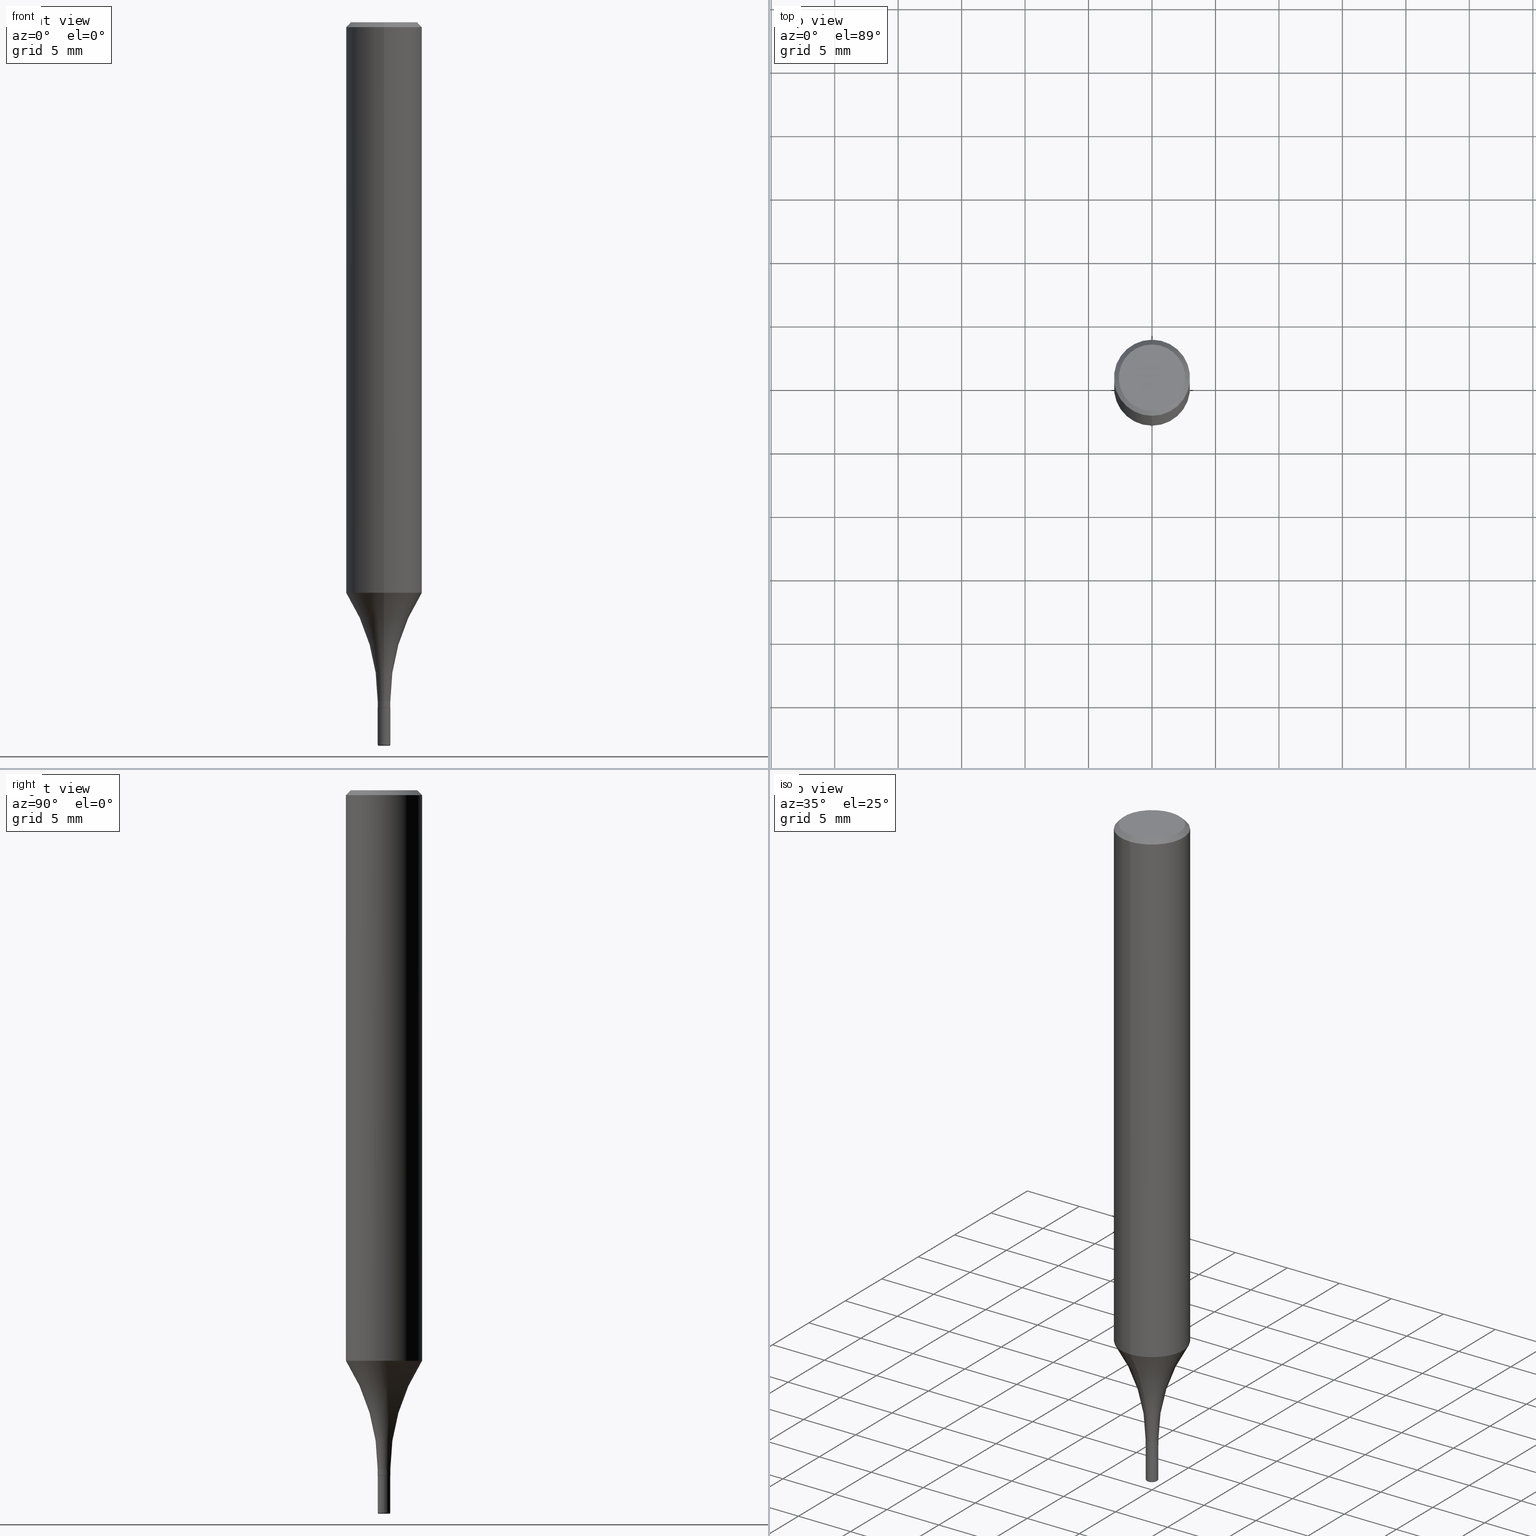
[diagram: canonical four-view strip — front | top / right | iso, engineering-drawing reading convention]
A machine part, canonical four-view strip (front | top / right | iso — engineering-drawing reading convention). The complete STEP part file that produces these views, byte-faithful:
ISO-10303-21;
HEADER;
FILE_DESCRIPTION (( 'STEP AP203' ),
    '1' );
FILE_NAME ('46873.STEP',
    '2024-02-29T19:33:22',
    ( '' ),
    ( '' ),
    'SwSTEP 2.0',
    'SolidWorks 2023',
    '' );
FILE_SCHEMA (( 'CONFIG_CONTROL_DESIGN' ));
ENDSEC;

DATA;
#1 = VERTEX_POINT ( 'NONE', #279 ) ;
#2 = VERTEX_POINT ( 'NONE', #356 ) ;
#3 = DIRECTION ( 'NONE',  ( -6.982962677686265922E-15, -1.000000000000000000, 4.626330217890367758E-15 ) ) ;
#4 = DIRECTION ( 'NONE',  ( -6.982962677686266711E-15, -1.000000000000000000, 3.488691266740256408E-15 ) ) ;
#5 = VECTOR ( 'NONE', #80, 39.37007874015748143 ) ;
#6 = DIRECTION ( 'NONE',  ( -2.447417103121389327E-29, 3.488691266740256803E-15, 1.000000000000000000 ) ) ;
#7 = CARTESIAN_POINT ( 'NONE',  ( 7.723156721521011834E-16, 0.1031000000000000111, -8.678692666830198749E-17 ) ) ;
#8 = CYLINDRICAL_SURFACE ( 'NONE', #275, 0.01969999999999991203 ) ;
#9 = FACE_OUTER_BOUND ( 'NONE', #409, .T. ) ;
#10 = EDGE_CURVE ( 'NONE', #2, #145, #11, .T. ) ;
#11 = CIRCLE ( 'NONE', #259, 0.01969999999999990856 ) ;
#12 = PLANE ( 'NONE',  #185 ) ;
#13 = VECTOR ( 'NONE', #171, 39.37007874015748143 ) ;
#14 = EDGE_CURVE ( 'NONE', #197, #232, #289, .T. ) ;
#15 = CARTESIAN_POINT ( 'NONE',  ( 8.246878922347483612E-16, 0.1180999999999999411, -0.01500000000000009659 ) ) ;
#16 = DIRECTION ( 'NONE',  ( -6.982962677686265922E-15, -1.000000000000000000, 0.000000000000000000 ) ) ;
#17 = ORIENTED_EDGE ( 'NONE', *, *, #131, .T. ) ;
#18 = EDGE_CURVE ( 'NONE', #1, #514, #22, .T. ) ;
#19 = DIRECTION ( 'NONE',  ( 1.000000000000000000, -6.982962677686244622E-15, 0.000000000000000000 ) ) ;
#20 = ORIENTED_EDGE ( 'NONE', *, *, #250, .F. ) ;
#21 = CYLINDRICAL_SURFACE ( 'NONE', #260, 0.1181000000000000105 ) ;
#22 = CIRCLE ( 'NONE', #210, 0.01969999999999999876 ) ;
#23 = VECTOR ( 'NONE', #53, 39.37007874015748143 ) ;
#24 = LOCAL_TIME ( 14, 33, 22.00000000000000000, #161 ) ;
#25 = DIRECTION ( 'NONE',  ( -6.982962677686265922E-15, -1.000000000000000000, 0.000000000000000000 ) ) ;
#26 = CARTESIAN_POINT ( 'NONE',  ( -0.01969999999999991203, 1.399769189447391115E-16, -9.690302127802120462E-31 ) ) ;
#27 = EDGE_LOOP ( 'NONE', ( #113, #66, #76, #31 ) ) ;
#28 = TOROIDAL_SURFACE ( 'NONE', #438, 0.6446999999999999398, 0.6250000000000000000 ) ;
#29 = ORIENTED_EDGE ( 'NONE', *, *, #315, .F. ) ;
#30 = DIRECTION ( 'NONE',  ( -1.000000000000000000, 6.982962677686265922E-15, -4.876176775795935793E-29 ) ) ;
#31 = ORIENTED_EDGE ( 'NONE', *, *, #216, .F. ) ;
#32 = APPROVAL_ROLE ( '' ) ;
#33 = ORIENTED_EDGE ( 'NONE', *, *, #401, .F. ) ;
#34 = ORIENTED_EDGE ( 'NONE', *, *, #131, .F. ) ;
#35 = SHAPE_DEFINITION_REPRESENTATION ( #456, #294 ) ;
#36 = DIRECTION ( 'NONE',  ( 1.000000000000000000, -6.982962677686241467E-15, 4.883557194083104493E-29 ) ) ;
#37 = VERTEX_POINT ( 'NONE', #38 ) ;
#38 = CARTESIAN_POINT ( 'NONE',  ( 0.01969999999999982529, -7.959180860026833037E-15, -2.240200000000000191 ) ) ;
#39 = AXIS2_PLACEMENT_3D ( 'NONE', #280, #251, #371 ) ;
#40 = CARTESIAN_POINT ( 'NONE',  ( 5.201985052684511926E-29, -7.415213287456414496E-15, -2.125499999999999723 ) ) ;
#41 = EDGE_CURVE ( 'NONE', #37, #348, #306, .T. ) ;
#42 = ORIENTED_EDGE ( 'NONE', *, *, #166, .F. ) ;
#43 = EDGE_LOOP ( 'NONE', ( #437, #343, #117, #228 ) ) ;
#44 = EDGE_LOOP ( 'NONE', ( #325, #394, #302, #42 ) ) ;
#45 = CARTESIAN_POINT ( 'NONE',  ( 4.895639449387564790E-16, 0.01969999999999257762, -2.106099999999999639 ) ) ;
#46 = ORIENTED_EDGE ( 'NONE', *, *, #41, .F. ) ;
#47 = EDGE_CURVE ( 'NONE', #305, #484, #296, .T. ) ;
#48 = PERSON_AND_ORGANIZATION ( #180, #483 ) ;
#49 = CC_DESIGN_PERSON_AND_ORGANIZATION_ASSIGNMENT ( #146, #65, ( #292 ) ) ;
#50 = DIRECTION ( 'NONE',  ( -6.982962677686265922E-15, -1.000000000000000000, 4.626330217890367758E-15 ) ) ;
#51 = PLANE ( 'NONE',  #458 ) ;
#52 = DIRECTION ( 'NONE',  ( -2.438088387897960049E-29, 3.491481338843145188E-15, 1.000000000000000000 ) ) ;
#53 = DIRECTION ( 'NONE',  ( -4.937700262163715794E-15, -0.7071067811864258923, 0.7071067811866691422 ) ) ;
#54 = DIRECTION ( 'NONE',  ( -1.000000000000000000, 7.105427357600940328E-15, 0.000000000000000000 ) ) ;
#55 = CARTESIAN_POINT ( 'NONE',  ( -8.246878922347480654E-16, -0.1181000000000000105, 4.120144386020243897E-16 ) ) ;
#56 = AXIS2_PLACEMENT_3D ( 'NONE', #159, #366, #482 ) ;
#57 = ADVANCED_FACE ( 'NONE', ( #9 ), #92, .F. ) ;
#58 = EDGE_CURVE ( 'NONE', #484, #348, #258, .T. ) ;
#59 = DIRECTION ( 'NONE',  ( -2.447417103121389327E-29, 3.488691266740256803E-15, 1.000000000000000000 ) ) ;
#60 = FACE_OUTER_BOUND ( 'NONE', #387, .T. ) ;
#61 = DIMENSIONAL_EXPONENTS ( 1.000000000000000000, 0.000000000000000000, 0.000000000000000000, 0.000000000000000000, 0.000000000000000000, 0.000000000000000000, 0.000000000000000000 ) ;
#62 = APPLICATION_CONTEXT ( 'configuration controlled 3d designs of mechanical parts and assemblies' ) ;
#63 = VECTOR ( 'NONE', #77, 39.37007874015748143 ) ;
#64 = CC_DESIGN_DATE_AND_TIME_ASSIGNMENT ( #433, #201, ( #408 ) ) ;
#65 = PERSON_AND_ORGANIZATION_ROLE ( 'design_owner' ) ;
#66 = ORIENTED_EDGE ( 'NONE', *, *, #499, .T. ) ;
#67 = LENGTH_MEASURE_WITH_UNIT ( LENGTH_MEASURE( 0.02539999999999999897 ), #295 );
#68 = AXIS2_PLACEMENT_3D ( 'NONE', #489, #320, #480 ) ;
#69 = AXIS2_PLACEMENT_3D ( 'NONE', #517, #90, #50 ) ;
#70 = EDGE_CURVE ( 'NONE', #193, #511, #212, .T. ) ;
#71 = ORIENTED_EDGE ( 'NONE', *, *, #499, .F. ) ;
#72 =( NAMED_UNIT ( * ) SI_UNIT ( $, .STERADIAN. ) SOLID_ANGLE_UNIT ( ) );
#73 = EDGE_LOOP ( 'NONE', ( #310, #219 ) ) ;
#74 = ORIENTED_EDGE ( 'NONE', *, *, #450, .F. ) ;
#75 = PERSON_AND_ORGANIZATION ( #180, #483 ) ;
#76 = ORIENTED_EDGE ( 'NONE', *, *, #501, .F. ) ;
#77 = DIRECTION ( 'NONE',  ( -2.445468806185136877E-29, 3.491481338843145188E-15, 1.000000000000000000 ) ) ;
#78 = AXIS2_PLACEMENT_3D ( 'NONE', #214, #414, #54 ) ;
#79 = AXIS2_PLACEMENT_3D ( 'NONE', #40, #84, #115 ) ;
#80 = DIRECTION ( 'NONE',  ( -2.447417103121389327E-29, 3.488691266740256803E-15, 1.000000000000000000 ) ) ;
#81 = DIRECTION ( 'NONE',  ( -2.445468806185136597E-29, 3.491481338843145583E-15, 1.000000000000000000 ) ) ;
#82 = ADVANCED_FACE ( 'NONE', ( #404 ), #243, .T. ) ;
#83 = PERSON_AND_ORGANIZATION ( #180, #483 ) ;
#84 = DIRECTION ( 'NONE',  ( -2.447417103121389327E-29, 3.488691266740256803E-15, 1.000000000000000000 ) ) ;
#85 = FACE_OUTER_BOUND ( 'NONE', #135, .T. ) ;
#86 = DIRECTION ( 'NONE',  ( -2.447417103121389327E-29, 3.488691266740256803E-15, 1.000000000000000000 ) ) ;
#87 = EDGE_LOOP ( 'NONE', ( #272, #392, #128, #351 ) ) ;
#88 = AXIS2_PLACEMENT_3D ( 'NONE', #354, #332, #287 ) ;
#89 = AXIS2_PLACEMENT_3D ( 'NONE', #169, #375, #173 ) ;
#90 = DIRECTION ( 'NONE',  ( -2.447417103121389327E-29, 3.488691266740256803E-15, 1.000000000000000000 ) ) ;
#91 = DIRECTION ( 'NONE',  ( 1.000000000000000000, -6.982962677686266711E-15, 4.876176775795936353E-29 ) ) ;
#92 = PLANE ( 'NONE',  #39 ) ;
#93 = CARTESIAN_POINT ( 'NONE',  ( 3.671125654682006797E-31, -5.233036900110274566E-17, -0.01499999999999968373 ) ) ;
#94 = ORIENTED_EDGE ( 'NONE', *, *, #274, .F. ) ;
#95 = LINE ( 'NONE', #55, #129 ) ;
#96 = CONICAL_SURFACE ( 'NONE', #205, 0.1180999999999999966, 0.7853981633974495002 ) ;
#97 = CARTESIAN_POINT ( 'NONE',  ( -1.340728834115236247E-16, -0.01920000000000732232, -2.125999999999999890 ) ) ;
#98 = ADVANCED_FACE ( 'NONE', ( #85 ), #290, .F. ) ;
#99 = DIRECTION ( 'NONE',  ( 1.000000000000000000, -6.982962677686278543E-15, 0.000000000000000000 ) ) ;
#100 = DIRECTION ( 'NONE',  ( -2.447417103121389327E-29, 3.488691266740256803E-15, 1.000000000000000000 ) ) ;
#101 = AXIS2_PLACEMENT_3D ( 'NONE', #333, #496, #460 ) ;
#102 = AXIS2_PLACEMENT_3D ( 'NONE', #321, #86, #207 ) ;
#103 = AXIS2_PLACEMENT_3D ( 'NONE', #106, #298, #424 ) ;
#104 =( NAMED_UNIT ( * ) PLANE_ANGLE_UNIT ( ) SI_UNIT ( $, .RADIAN. ) );
#105 = ORIENTED_EDGE ( 'NONE', *, *, #221, .F. ) ;
#106 = CARTESIAN_POINT ( 'NONE',  ( 5.478339219615943366E-29, -7.821616495276413823E-15, -2.240200000000000191 ) ) ;
#107 = AXIS2_PLACEMENT_3D ( 'NONE', #164, #202, #121 ) ;
#108 = ORIENTED_EDGE ( 'NONE', *, *, #412, .T. ) ;
#109 = APPROVAL_ROLE ( '' ) ;
#110 = VERTEX_POINT ( 'NONE', #283 ) ;
#111 = COORDINATED_UNIVERSAL_TIME_OFFSET ( 5, 0, .BEHIND. ) ;
#112 = FACE_OUTER_BOUND ( 'NONE', #143, .T. ) ;
#113 = ORIENTED_EDGE ( 'NONE', *, *, #41, .T. ) ;
#114 = DIRECTION ( 'NONE',  ( -2.447417103121389327E-29, 3.488691266740256803E-15, 1.000000000000000000 ) ) ;
#115 = DIRECTION ( 'NONE',  ( -6.982962677686266711E-15, -1.000000000000000000, 0.000000000000000000 ) ) ;
#116 = ADVANCED_FACE ( 'NONE', ( #503 ), #122, .T. ) ;
#117 = ORIENTED_EDGE ( 'NONE', *, *, #385, .T. ) ;
#118 = CIRCLE ( 'NONE', #192, 0.6250000000000001110 ) ;
#119 = APPROVAL_PERSON_ORGANIZATION ( #427, #467, #32 ) ;
#120 = PERSON_AND_ORGANIZATION_ROLE ( 'design_supplier' ) ;
#121 = DIRECTION ( 'NONE',  ( 1.000000000000000000, -6.982962677686241467E-15, 4.883557194083104493E-29 ) ) ;
#122 = CYLINDRICAL_SURFACE ( 'NONE', #211, 0.01969999999999991550 ) ;
#123 = PERSON_AND_ORGANIZATION ( #180, #483 ) ;
#124 = CARTESIAN_POINT ( 'NONE',  ( 1.364242052659905737E-16, 0.01919999999999248697, -2.125999999999999890 ) ) ;
#125 = EDGE_CURVE ( 'NONE', #317, #488, #471, .T. ) ;
#126 = DIRECTION ( 'NONE',  ( 2.447417103121388767E-29, -3.488691266740256803E-15, -1.000000000000000000 ) ) ;
#127 = MANIFOLD_SOLID_BREP ( 'Body-Move/Copy2[1]', #226 ) ;
#128 = ORIENTED_EDGE ( 'NONE', *, *, #315, .T. ) ;
#129 = VECTOR ( 'NONE', #418, 39.37007874015748143 ) ;
#130 = AXIS2_PLACEMENT_3D ( 'NONE', #248, #411, #261 ) ;
#131 = EDGE_CURVE ( 'NONE', #488, #197, #118, .T. ) ;
#132 = CYLINDRICAL_SURFACE ( 'NONE', #322, 0.01969999999999991203 ) ;
#133 = FACE_OUTER_BOUND ( 'NONE', #186, .T. ) ;
#134 = EDGE_CURVE ( 'NONE', #317, #511, #479, .T. ) ;
#135 = EDGE_LOOP ( 'NONE', ( #230, #183, #108, #34 ) ) ;
#136 = EDGE_CURVE ( 'NONE', #513, #193, #421, .T. ) ;
#137 = DIRECTION ( 'NONE',  ( -2.447417103121389327E-29, 3.488691266740256803E-15, 1.000000000000000000 ) ) ;
#138 = AXIS2_PLACEMENT_3D ( 'NONE', #477, #395, #162 ) ;
#139 = ORIENTED_EDGE ( 'NONE', *, *, #47, .F. ) ;
#140 = DIRECTION ( 'NONE',  ( -6.982962677686265922E-15, -1.000000000000000000, 3.488691266740257197E-15 ) ) ;
#141 = DIRECTION ( 'NONE',  ( 2.438088387897960049E-29, -3.491481338843145188E-15, -1.000000000000000000 ) ) ;
#142 = CIRCLE ( 'NONE', #79, 0.01969999999999990856 ) ;
#143 = EDGE_LOOP ( 'NONE', ( #432, #428, #391, #223 ) ) ;
#144 = DIRECTION ( 'NONE',  ( 0.000000000000000000, 0.000000000000000000, 1.000000000000000000 ) ) ;
#145 = VERTEX_POINT ( 'NONE', #318 ) ;
#146 = PERSON_AND_ORGANIZATION ( #180, #483 ) ;
#147 = ORIENTED_EDGE ( 'NONE', *, *, #166, .T. ) ;
#148 = DIRECTION ( 'NONE',  ( -6.982962677686265922E-15, -1.000000000000000000, 0.000000000000000000 ) ) ;
#149 = ORIENTED_EDGE ( 'NONE', *, *, #47, .T. ) ;
#150 = AXIS2_PLACEMENT_3D ( 'NONE', #335, #137, #461 ) ;
#151 = APPROVAL_PERSON_ORGANIZATION ( #518, #495, #393 ) ;
#152 = ORIENTED_EDGE ( 'NONE', *, *, #510, .T. ) ;
#153 = DATE_AND_TIME ( #277, #441 ) ;
#154 = CARTESIAN_POINT ( 'NONE',  ( -4.501916038304283844E-15, -0.6447000000000073783, -2.106099999999997419 ) ) ;
#155 = PRODUCT_DEFINITION ( 'UNKNOWN', '', #194, #455 ) ;
#156 = FACE_OUTER_BOUND ( 'NONE', #190, .T. ) ;
#157 = CARTESIAN_POINT ( 'NONE',  ( 5.201985052684511926E-29, -7.415213287456414496E-15, -2.125499999999999723 ) ) ;
#158 = ORIENTED_EDGE ( 'NONE', *, *, #370, .F. ) ;
#159 = CARTESIAN_POINT ( 'NONE',  ( 0.000000000000000000, 0.000000000000000000, 0.000000000000000000 ) ) ;
#160 = ADVANCED_FACE ( 'NONE', ( #486 ), #363, .T. ) ;
#161 = COORDINATED_UNIVERSAL_TIME_OFFSET ( 5, 0, .BEHIND. ) ;
#162 = DIRECTION ( 'NONE',  ( 6.982962677686265922E-15, 1.000000000000000000, -3.487819265831411744E-15 ) ) ;
#163 = COORDINATED_UNIVERSAL_TIME_OFFSET ( 5, 0, .BEHIND. ) ;
#164 = CARTESIAN_POINT ( 'NONE',  ( 5.478339219615943366E-29, -7.821616495276413823E-15, -2.240200000000000191 ) ) ;
#165 = DIRECTION ( 'NONE',  ( 6.982962677686265922E-15, 1.000000000000000000, -3.487819265831411744E-15 ) ) ;
#166 = EDGE_CURVE ( 'NONE', #145, #197, #313, .T. ) ;
#167 = AXIS2_PLACEMENT_3D ( 'NONE', #217, #59, #209 ) ;
#168 = LOCAL_TIME ( 14, 33, 22.00000000000000000, #111 ) ;
#169 = CARTESIAN_POINT ( 'NONE',  ( 5.154505160883957169E-29, -7.347532676881652574E-15, -2.106099999999999639 ) ) ;
#170 = EDGE_LOOP ( 'NONE', ( #152, #452, #105, #29 ) ) ;
#171 = DIRECTION ( 'NONE',  ( 4.937700262164553564E-15, 0.7071067811865459074, -0.7071067811865491270 ) ) ;
#172 = DIRECTION ( 'NONE',  ( -2.445468806185136597E-29, 3.491481338843145583E-15, 1.000000000000000000 ) ) ;
#173 = DIRECTION ( 'NONE',  ( -6.982962677686264344E-15, -1.000000000000000000, 0.000000000000000000 ) ) ;
#174 = CLOSED_SHELL ( 'NONE', ( #177, #181, #413, #82, #98, #367, #116, #487, #57, #268, #342, #436 ) ) ;
#175 = DIRECTION ( 'NONE',  ( -2.447417103121389327E-29, 3.488691266740256803E-15, 1.000000000000000000 ) ) ;
#176 = VECTOR ( 'NONE', #355, 39.37007874015748143 ) ;
#177 = ADVANCED_FACE ( 'NONE', ( #156 ), #270, .T. ) ;
#178 = CC_DESIGN_PERSON_AND_ORGANIZATION_ASSIGNMENT ( #48, #357, ( #408 ) ) ;
#179 = DIRECTION ( 'NONE',  ( -2.447417103121389327E-29, 3.488691266740256803E-15, 1.000000000000000000 ) ) ;
#180 = PERSON ( 'UNSPECIFIED', 'UNSPECIFIED', 'UNSPECIFIED', ('UNSPECIFIED'), ('UNSPECIFIED'), ('UNSPECIFIED') ) ;
#181 = ADVANCED_FACE ( 'NONE', ( #112 ), #246, .T. ) ;
#182 = ADVANCED_FACE ( 'NONE', ( #239 ), #329, .T. ) ;
#183 = ORIENTED_EDGE ( 'NONE', *, *, #401, .T. ) ;
#184 = DIRECTION ( 'NONE',  ( -2.445468806185136877E-29, 3.491481338843145188E-15, 1.000000000000000000 ) ) ;
#185 = AXIS2_PLACEMENT_3D ( 'NONE', #502, #52, #492 ) ;
#186 = EDGE_LOOP ( 'NONE', ( #238, #475, #470, #466 ) ) ;
#187 =( CONVERSION_BASED_UNIT ( 'INCH', #67 ) LENGTH_UNIT ( ) NAMED_UNIT ( #61 ) );
#188 = EDGE_LOOP ( 'NONE', ( #199, #242, #382, #74 ) ) ;
#189 = MECHANICAL_CONTEXT ( 'NONE', #62, 'mechanical' ) ;
#190 = EDGE_LOOP ( 'NONE', ( #245, #262, #20, #519 ) ) ;
#191 = DIRECTION ( 'NONE',  ( -2.447417103121389327E-29, 3.488691266740256803E-15, 1.000000000000000000 ) ) ;
#192 = AXIS2_PLACEMENT_3D ( 'NONE', #154, #403, #440 ) ;
#193 = VERTEX_POINT ( 'NONE', #7 ) ;
#194 = PRODUCT_DEFINITION_FORMATION_WITH_SPECIFIED_SOURCE ( 'ANY', '', #292, .NOT_KNOWN. ) ;
#195 = LINE ( 'NONE', #124, #176 ) ;
#196 = APPROVAL_DATE_TIME ( #402, #341 ) ;
#197 = VERTEX_POINT ( 'NONE', #435 ) ;
#198 = CARTESIAN_POINT ( 'NONE',  ( 4.330639563837398876E-29, -6.173146541507197219E-15, -1.769473441332980679 ) ) ;
#199 = ORIENTED_EDGE ( 'NONE', *, *, #58, .F. ) ;
#200 = EDGE_CURVE ( 'NONE', #511, #110, #407, .T. ) ;
#201 = DATE_TIME_ROLE ( 'classification_date' ) ;
#202 = DIRECTION ( 'NONE',  ( -2.445468806185136597E-29, 3.491481338843145583E-15, 1.000000000000000000 ) ) ;
#203 = EDGE_LOOP ( 'NONE', ( #94, #319, #147, #426 ) ) ;
#204 = ORIENTED_EDGE ( 'NONE', *, *, #216, .T. ) ;
#205 = AXIS2_PLACEMENT_3D ( 'NONE', #93, #368, #165 ) ;
#206 = CIRCLE ( 'NONE', #364, 0.01919999999999990464 ) ;
#207 = DIRECTION ( 'NONE',  ( -6.982962677686265922E-15, -1.000000000000000000, 3.487819265831411744E-15 ) ) ;
#208 = DIRECTION ( 'NONE',  ( -2.447417103121389327E-29, 3.488691266740256803E-15, 1.000000000000000000 ) ) ;
#209 = DIRECTION ( 'NONE',  ( -6.982962677686265922E-15, -1.000000000000000000, 3.488691266740255619E-15 ) ) ;
#210 = AXIS2_PLACEMENT_3D ( 'NONE', #266, #81, #431 ) ;
#211 = AXIS2_PLACEMENT_3D ( 'NONE', #399, #235, #405 ) ;
#212 = LINE ( 'NONE', #15, #13 ) ;
#213 = LINE ( 'NONE', #454, #378 ) ;
#214 = CARTESIAN_POINT ( 'NONE',  ( -0.01580000000000000501, -7.709350743026319314E-15, -2.240200000000000191 ) ) ;
#215 = CARTESIAN_POINT ( 'NONE',  ( 4.580869017445415958E-15, 0.6446999999999926123, -2.106100000000001859 ) ) ;
#216 = EDGE_CURVE ( 'NONE', #37, #514, #443, .T. ) ;
#217 = CARTESIAN_POINT ( 'NONE',  ( -6.678931350062527818E-45, 9.520538792673935931E-31, 2.728971429326184979E-16 ) ) ;
#218 = CARTESIAN_POINT ( 'NONE',  ( -8.102248135368174406E-16, -0.1181000000000000522, -0.01499999999999927260 ) ) ;
#219 = ORIENTED_EDGE ( 'NONE', *, *, #18, .T. ) ;
#220 = APPLICATION_PROTOCOL_DEFINITION ( 'international standard', 'config_control_design', 1994, #62 ) ;
#221 = EDGE_CURVE ( 'NONE', #145, #2, #142, .T. ) ;
#222 = PLANE ( 'NONE',  #390 ) ;
#223 = ORIENTED_EDGE ( 'NONE', *, *, #70, .F. ) ;
#224 = DIRECTION ( 'NONE',  ( -4.851104656540969797E-15, -0.7071067811865507924, -0.7071067811865442421 ) ) ;
#225 = EDGE_CURVE ( 'NONE', #373, #2, #195, .T. ) ;
#226 = CLOSED_SHELL ( 'NONE', ( #160, #271, #504, #374, #182, #347 ) ) ;
#227 = CIRCLE ( 'NONE', #89, 0.01969999999999992590 ) ;
#228 = ORIENTED_EDGE ( 'NONE', *, *, #200, .F. ) ;
#229 = APPROVAL_STATUS ( 'not_yet_approved' ) ;
#230 = ORIENTED_EDGE ( 'NONE', *, *, #125, .F. ) ;
#231 = DATE_AND_TIME ( #311, #168 ) ;
#232 = VERTEX_POINT ( 'NONE', #45 ) ;
#233 = EDGE_CURVE ( 'NONE', #488, #317, #388, .T. ) ;
#234 = ORIENTED_EDGE ( 'NONE', *, *, #450, .T. ) ;
#235 = DIRECTION ( 'NONE',  ( -2.447417103121389327E-29, 3.488691266740256803E-15, 1.000000000000000000 ) ) ;
#236 = AXIS2_PLACEMENT_3D ( 'NONE', #448, #360, #4 ) ;
#237 = CC_DESIGN_APPROVAL ( #495, ( #408 ) ) ;
#238 = ORIENTED_EDGE ( 'NONE', *, *, #446, .F. ) ;
#239 = FACE_OUTER_BOUND ( 'NONE', #188, .T. ) ;
#240 = CALENDAR_DATE ( 2024, 29, 2 ) ;
#241 = DIRECTION ( 'NONE',  ( -6.982962677686265922E-15, -1.000000000000000000, 3.488691266740255619E-15 ) ) ;
#242 = ORIENTED_EDGE ( 'NONE', *, *, #381, .T. ) ;
#243 = CYLINDRICAL_SURFACE ( 'NONE', #101, 0.01969999999999991550 ) ;
#244 = DIRECTION ( 'NONE',  ( -2.447417103121389327E-29, 3.488691266740256803E-15, 1.000000000000000000 ) ) ;
#245 = ORIENTED_EDGE ( 'NONE', *, *, #233, .T. ) ;
#246 = CONICAL_SURFACE ( 'NONE', #138, 0.1180999999999999966, 0.7853981633974495002 ) ;
#247 = CARTESIAN_POINT ( 'NONE',  ( 5.487876547960064752E-29, -7.835233272497900762E-15, -2.244099999999999540 ) ) ;
#248 = CARTESIAN_POINT ( 'NONE',  ( 0.01580000000000000501, -7.931947305583857582E-15, -2.240200000000000191 ) ) ;
#249 = DIRECTION ( 'NONE',  ( 7.105427357600999492E-15, 1.000000000000000000, 0.000000000000000000 ) ) ;
#250 = EDGE_CURVE ( 'NONE', #110, #511, #516, .T. ) ;
#251 = DIRECTION ( 'NONE',  ( -2.447417103121388767E-29, 3.488691266740256803E-15, 1.000000000000000000 ) ) ;
#252 = DIRECTION ( 'NONE',  ( -2.447417103121389327E-29, 3.488691266740256803E-15, 1.000000000000000000 ) ) ;
#253 = AXIS2_PLACEMENT_3D ( 'NONE', #215, #369, #249 ) ;
#254 = AXIS2_PLACEMENT_3D ( 'NONE', #264, #257, #99 ) ;
#255 = DIRECTION ( 'NONE',  ( -2.445468806185136597E-29, 3.491481338843145583E-15, 1.000000000000000000 ) ) ;
#256 = LINE ( 'NONE', #419, #23 ) ;
#257 = DIRECTION ( 'NONE',  ( -2.445468806185136597E-29, 3.491481338843145583E-15, 1.000000000000000000 ) ) ;
#258 = CIRCLE ( 'NONE', #78, 0.003899999999999820277 ) ;
#259 = AXIS2_PLACEMENT_3D ( 'NONE', #157, #114, #309 ) ;
#260 = AXIS2_PLACEMENT_3D ( 'NONE', #462, #175, #140 ) ;
#261 = DIRECTION ( 'NONE',  ( 1.000000000000000000, -6.982962677686232001E-15, 0.000000000000000000 ) ) ;
#262 = ORIENTED_EDGE ( 'NONE', *, *, #134, .T. ) ;
#263 = APPLICATION_PROTOCOL_DEFINITION ( 'international standard', 'config_control_design', 1994, #508 ) ;
#264 = CARTESIAN_POINT ( 'NONE',  ( 5.199066681949599750E-29, -7.422889326380526631E-15, -2.125999999999999890 ) ) ;
#265 =( GEOMETRIC_REPRESENTATION_CONTEXT ( 3 ) GLOBAL_UNCERTAINTY_ASSIGNED_CONTEXT ( ( #336 ) ) GLOBAL_UNIT_ASSIGNED_CONTEXT ( ( #187, #104, #72 ) ) REPRESENTATION_CONTEXT ( 'NONE', 'WORKASPACE' ) );
#266 = CARTESIAN_POINT ( 'NONE',  ( 5.199066681949599750E-29, -7.422889326380526631E-15, -2.125999999999999890 ) ) ;
#267 = COORDINATED_UNIVERSAL_TIME_OFFSET ( 5, 0, .BEHIND. ) ;
#268 = ADVANCED_FACE ( 'NONE', ( #282 ), #51, .F. ) ;
#269 = SECURITY_CLASSIFICATION_LEVEL ( 'unclassified' ) ;
#270 = CYLINDRICAL_SURFACE ( 'NONE', #56, 0.1181000000000000105 ) ;
#271 = ADVANCED_FACE ( 'NONE', ( #498 ), #132, .T. ) ;
#272 = ORIENTED_EDGE ( 'NONE', *, *, #225, .F. ) ;
#273 = CARTESIAN_POINT ( 'NONE',  ( 8.391509709326782957E-16, 0.1181000000000000105, -4.120144386020243897E-16 ) ) ;
#274 = EDGE_CURVE ( 'NONE', #2, #232, #213, .T. ) ;
#275 = AXIS2_PLACEMENT_3D ( 'NONE', #451, #255, #91 ) ;
#276 = CC_DESIGN_APPROVAL ( #341, ( #194 ) ) ;
#277 = CALENDAR_DATE ( 2024, 29, 2 ) ;
#278 = CARTESIAN_POINT ( 'NONE',  ( 5.478339219615943366E-29, -7.821616495276413823E-15, -2.240200000000000191 ) ) ;
#279 = CARTESIAN_POINT ( 'NONE',  ( -0.01969999999999999876, -7.482275991883730918E-15, -2.125999999999999890 ) ) ;
#280 = CARTESIAN_POINT ( 'NONE',  ( 5.203208761236072934E-29, -7.416957633089785307E-15, -2.125999999999999890 ) ) ;
#281 = DIRECTION ( 'NONE',  ( -2.447417103121389327E-29, 3.488691266740256803E-15, 1.000000000000000000 ) ) ;
#282 = FACE_OUTER_BOUND ( 'NONE', #327, .T. ) ;
#283 = CARTESIAN_POINT ( 'NONE',  ( -8.102248135368174406E-16, -0.1181000000000000522, -0.01499999999999927260 ) ) ;
#284 = AXIS2_PLACEMENT_3D ( 'NONE', #278, #324, #36 ) ;
#285 = CARTESIAN_POINT ( 'NONE',  ( 5.150401852706515444E-29, -7.353408847737546844E-15, -2.106099999999999639 ) ) ;
#286 = DIRECTION ( 'NONE',  ( 1.000000000000000000, -6.982962677686266711E-15, 4.876176775795936353E-29 ) ) ;
#287 = DIRECTION ( 'NONE',  ( 1.000000000000000000, -6.982962677686242256E-15, 0.000000000000000000 ) ) ;
#288 = DIRECTION ( 'NONE',  ( -2.447417103121389327E-29, 3.488691266740256803E-15, 1.000000000000000000 ) ) ;
#289 = CIRCLE ( 'NONE', #68, 0.01969999999999992590 ) ;
#290 = TOROIDAL_SURFACE ( 'NONE', #236, 0.6446999999999999398, 0.6250000000000000000 ) ;
#291 = CARTESIAN_POINT ( 'NONE',  ( 0.01580000000000000501, -7.945564082805344521E-15, -2.244099999999999540 ) ) ;
#292 = PRODUCT ( '46873', '46873', '', ( #189 ) ) ;
#293 = CARTESIAN_POINT ( 'NONE',  ( -0.01969999999999982529, -7.482275991883732496E-15, -2.240200000000000191 ) ) ;
#294 = ADVANCED_BREP_SHAPE_REPRESENTATION ( '46873', ( #127, #490, #400 ), #265 ) ;
#295 =( LENGTH_UNIT ( ) NAMED_UNIT ( * ) SI_UNIT ( $, .METRE. ) );
#296 = CIRCLE ( 'NONE', #377, 0.01580000000000000501 ) ;
#297 = AXIS2_PLACEMENT_3D ( 'NONE', #198, #281, #3 ) ;
#298 = DIRECTION ( 'NONE',  ( -2.445468806185136597E-29, 3.491481338843145583E-15, 1.000000000000000000 ) ) ;
#299 = CC_DESIGN_DATE_AND_TIME_ASSIGNMENT ( #231, #485, ( #155 ) ) ;
#300 = EDGE_LOOP ( 'NONE', ( #71, #234, #204, #312 ) ) ;
#301 = CARTESIAN_POINT ( 'NONE',  ( -0.01580000000000000501, -7.702303548289741567E-15, -2.244099999999999540 ) ) ;
#302 = ORIENTED_EDGE ( 'NONE', *, *, #14, .F. ) ;
#303 = CC_DESIGN_PERSON_AND_ORGANIZATION_ASSIGNMENT ( #83, #120, ( #194 ) ) ;
#304 = FACE_OUTER_BOUND ( 'NONE', #73, .T. ) ;
#305 = VERTEX_POINT ( 'NONE', #291 ) ;
#306 = CIRCLE ( 'NONE', #88, 0.01969999999999982529 ) ;
#307 = CONICAL_SURFACE ( 'NONE', #150, 0.01919999999999990464, 0.7853981633972797471 ) ;
#308 = CONICAL_SURFACE ( 'NONE', #345, 0.01919999999999990464, 0.7853981633972797471 ) ;
#309 = DIRECTION ( 'NONE',  ( -6.982962677686266711E-15, -1.000000000000000000, 0.000000000000000000 ) ) ;
#310 = ORIENTED_EDGE ( 'NONE', *, *, #501, .T. ) ;
#311 = CALENDAR_DATE ( 2024, 29, 2 ) ;
#312 = ORIENTED_EDGE ( 'NONE', *, *, #18, .F. ) ;
#313 = LINE ( 'NONE', #520, #463 ) ;
#314 = ORIENTED_EDGE ( 'NONE', *, *, #386, .T. ) ;
#315 = EDGE_CURVE ( 'NONE', #430, #145, #256, .T. ) ;
#316 = DATE_AND_TIME ( #478, #379 ) ;
#317 = VERTEX_POINT ( 'NONE', #497 ) ;
#318 = CARTESIAN_POINT ( 'NONE',  ( -1.375643647503668044E-16, -0.01970000000000732276, -2.125499999999999723 ) ) ;
#319 = ORIENTED_EDGE ( 'NONE', *, *, #10, .T. ) ;
#320 = DIRECTION ( 'NONE',  ( -2.447417103121389327E-29, 3.488691266740256803E-15, 1.000000000000000000 ) ) ;
#321 = CARTESIAN_POINT ( 'NONE',  ( 3.671125654682006797E-31, -5.233036900110274566E-17, -0.01499999999999968373 ) ) ;
#322 = AXIS2_PLACEMENT_3D ( 'NONE', #328, #334, #286 ) ;
#323 = APPROVAL_STATUS ( 'not_yet_approved' ) ;
#324 = DIRECTION ( 'NONE',  ( -2.445468806185136597E-29, 3.491481338843145583E-15, 1.000000000000000000 ) ) ;
#325 = ORIENTED_EDGE ( 'NONE', *, *, #221, .T. ) ;
#326 = CARTESIAN_POINT ( 'NONE',  ( -6.678931350062527818E-45, 9.520538792673935931E-31, 2.728971429326184979E-16 ) ) ;
#327 = EDGE_LOOP ( 'NONE', ( #314, #358 ) ) ;
#328 = CARTESIAN_POINT ( 'NONE',  ( 0.000000000000000000, 0.000000000000000000, 0.000000000000000000 ) ) ;
#329 = TOROIDAL_SURFACE ( 'NONE', #284, 0.01580000000000000501, 0.003899999999999820277 ) ;
#330 = VECTOR ( 'NONE', #224, 39.37007874015748143 ) ;
#331 = CARTESIAN_POINT ( 'NONE',  ( 1.382005621053906038E-16, 0.01919999999999248697, -2.125999999999999890 ) ) ;
#332 = DIRECTION ( 'NONE',  ( -2.445468806185136597E-29, 3.491481338843145583E-15, 1.000000000000000000 ) ) ;
#333 = CARTESIAN_POINT ( 'NONE',  ( 0.000000000000000000, 0.000000000000000000, 0.000000000000000000 ) ) ;
#334 = DIRECTION ( 'NONE',  ( -2.445468806185136597E-29, 3.491481338843145583E-15, 1.000000000000000000 ) ) ;
#335 = CARTESIAN_POINT ( 'NONE',  ( 5.203208761236072934E-29, -7.416957633089785307E-15, -2.125999999999999890 ) ) ;
#336 = UNCERTAINTY_MEASURE_WITH_UNIT (LENGTH_MEASURE( 1.000000000000000082E-05 ), #187, 'distance_accuracy_value', 'NONE');
#337 = EDGE_LOOP ( 'NONE', ( #33, #468, #17, #459 ) ) ;
#338 = APPROVAL_PERSON_ORGANIZATION ( #396, #341, #109 ) ;
#339 = FACE_OUTER_BOUND ( 'NONE', #300, .T. ) ;
#340 = CARTESIAN_POINT ( 'NONE',  ( 8.246878922347483612E-16, 0.1180999999999999411, -0.01500000000000009659 ) ) ;
#341 = APPROVAL ( #323, 'UNSPECIFIED' ) ;
#342 = ADVANCED_FACE ( 'NONE', ( #133 ), #96, .T. ) ;
#343 = ORIENTED_EDGE ( 'NONE', *, *, #125, .T. ) ;
#344 = CIRCLE ( 'NONE', #493, 0.01919999999999990464 ) ;
#345 = AXIS2_PLACEMENT_3D ( 'NONE', #505, #179, #148 ) ;
#346 = ORIENTED_EDGE ( 'NONE', *, *, #439, .F. ) ;
#347 = ADVANCED_FACE ( 'NONE', ( #60 ), #12, .F. ) ;
#348 = VERTEX_POINT ( 'NONE', #293 ) ;
#349 = COORDINATED_UNIVERSAL_TIME_OFFSET ( 5, 0, .BEHIND. ) ;
#350 = ORIENTED_EDGE ( 'NONE', *, *, #381, .F. ) ;
#351 = ORIENTED_EDGE ( 'NONE', *, *, #10, .F. ) ;
#352 = CARTESIAN_POINT ( 'NONE',  ( 0.01969999999999991203, -1.375643647504188446E-16, 9.606068248317951179E-31 ) ) ;
#353 = AXIS2_PLACEMENT_3D ( 'NONE', #445, #191, #359 ) ;
#354 = CARTESIAN_POINT ( 'NONE',  ( 5.478339219615943366E-29, -7.821616495276413823E-15, -2.240200000000000191 ) ) ;
#355 = DIRECTION ( 'NONE',  ( 5.024295867787215153E-15, 0.7071067811864307773, 0.7071067811866642572 ) ) ;
#356 = CARTESIAN_POINT ( 'NONE',  ( 1.399769189447908559E-16, 0.01969999999999249435, -2.125499999999999723 ) ) ;
#357 = PERSON_AND_ORGANIZATION_ROLE ( 'classification_officer' ) ;
#358 = ORIENTED_EDGE ( 'NONE', *, *, #136, .T. ) ;
#359 = DIRECTION ( 'NONE',  ( -6.982962677686265922E-15, -1.000000000000000000, 3.487819265831411744E-15 ) ) ;
#360 = DIRECTION ( 'NONE',  ( -2.447417103121389327E-29, 3.488691266740256803E-15, 1.000000000000000000 ) ) ;
#361 = ORIENTED_EDGE ( 'NONE', *, *, #58, .T. ) ;
#362 = APPROVAL_STATUS ( 'not_yet_approved' ) ;
#363 = TOROIDAL_SURFACE ( 'NONE', #107, 0.01580000000000000501, 0.003899999999999820277 ) ;
#364 = AXIS2_PLACEMENT_3D ( 'NONE', #380, #100, #25 ) ;
#365 = CALENDAR_DATE ( 2024, 29, 2 ) ;
#366 = DIRECTION ( 'NONE',  ( -2.447417103121389327E-29, 3.488691266740256803E-15, 1.000000000000000000 ) ) ;
#367 = ADVANCED_FACE ( 'NONE', ( #457 ), #28, .F. ) ;
#368 = DIRECTION ( 'NONE',  ( 2.447417103121389327E-29, -3.488691266740256803E-15, -1.000000000000000000 ) ) ;
#369 = DIRECTION ( 'NONE',  ( 1.000000000000000000, -7.105427357601001070E-15, 4.926281340013380530E-29 ) ) ;
#370 = EDGE_CURVE ( 'NONE', #373, #430, #344, .T. ) ;
#371 = DIRECTION ( 'NONE',  ( -6.982962677686265922E-15, -1.000000000000000000, 3.488691266740256803E-15 ) ) ;
#372 = CARTESIAN_POINT ( 'NONE',  ( 5.203208761236072934E-29, -7.416957633089785307E-15, -2.125999999999999890 ) ) ;
#373 = VERTEX_POINT ( 'NONE', #331 ) ;
#374 = ADVANCED_FACE ( 'NONE', ( #339 ), #8, .T. ) ;
#375 = DIRECTION ( 'NONE',  ( -2.447417103121389327E-29, 3.488691266740256803E-15, 1.000000000000000000 ) ) ;
#376 = FACE_OUTER_BOUND ( 'NONE', #43, .T. ) ;
#377 = AXIS2_PLACEMENT_3D ( 'NONE', #247, #444, #453 ) ;
#378 = VECTOR ( 'NONE', #208, 39.37007874015748143 ) ;
#379 = LOCAL_TIME ( 14, 33, 22.00000000000000000, #349 ) ;
#380 = CARTESIAN_POINT ( 'NONE',  ( 5.203208761236072934E-29, -7.416957633089785307E-15, -2.125999999999999890 ) ) ;
#381 = EDGE_CURVE ( 'NONE', #484, #305, #429, .T. ) ;
#382 = ORIENTED_EDGE ( 'NONE', *, *, #439, .T. ) ;
#383 = DIRECTION ( 'NONE',  ( 1.000000000000000000, 0.000000000000000000, 0.000000000000000000 ) ) ;
#384 = LINE ( 'NONE', #26, #464 ) ;
#385 = EDGE_CURVE ( 'NONE', #488, #110, #95, .T. ) ;
#386 = EDGE_CURVE ( 'NONE', #193, #513, #416, .T. ) ;
#387 = EDGE_LOOP ( 'NONE', ( #139, #350 ) ) ;
#388 = CIRCLE ( 'NONE', #297, 0.1181000000000000383 ) ;
#389 = CARTESIAN_POINT ( 'NONE',  ( -8.246878922347047766E-16, -0.1181000000000062278, -1.769473441332980013 ) ) ;
#390 = AXIS2_PLACEMENT_3D ( 'NONE', #465, #141, #30 ) ;
#391 = ORIENTED_EDGE ( 'NONE', *, *, #250, .T. ) ;
#392 = ORIENTED_EDGE ( 'NONE', *, *, #370, .T. ) ;
#393 = APPROVAL_ROLE ( '' ) ;
#394 = ORIENTED_EDGE ( 'NONE', *, *, #274, .T. ) ;
#395 = DIRECTION ( 'NONE',  ( 2.447417103121389327E-29, -3.488691266740256803E-15, -1.000000000000000000 ) ) ;
#396 = PERSON_AND_ORGANIZATION ( #180, #483 ) ;
#397 = ORIENTED_EDGE ( 'NONE', *, *, #510, .F. ) ;
#398 = AXIS2_PLACEMENT_3D ( 'NONE', #326, #6, #241 ) ;
#399 = CARTESIAN_POINT ( 'NONE',  ( 0.000000000000000000, 0.000000000000000000, 0.000000000000000000 ) ) ;
#400 = AXIS2_PLACEMENT_3D ( 'NONE', #509, #144, #383 ) ;
#401 = EDGE_CURVE ( 'NONE', #317, #232, #481, .T. ) ;
#402 = DATE_AND_TIME ( #240, #507 ) ;
#403 = DIRECTION ( 'NONE',  ( -1.000000000000000000, 6.982962677686265922E-15, -4.883557194083112901E-29 ) ) ;
#404 = FACE_OUTER_BOUND ( 'NONE', #44, .T. ) ;
#405 = DIRECTION ( 'NONE',  ( -6.982962677686266711E-15, -1.000000000000000000, 3.488691266740256803E-15 ) ) ;
#406 = CC_DESIGN_PERSON_AND_ORGANIZATION_ASSIGNMENT ( #75, #474, ( #155 ) ) ;
#407 = CIRCLE ( 'NONE', #353, 0.1180999999999999966 ) ;
#408 = SECURITY_CLASSIFICATION ( '', '', #269 ) ;
#409 = EDGE_LOOP ( 'NONE', ( #397, #158 ) ) ;
#410 = DIRECTION ( 'NONE',  ( -6.982962677686266711E-15, -1.000000000000000000, 3.488691266740256408E-15 ) ) ;
#411 = DIRECTION ( 'NONE',  ( -6.982962677686266711E-15, -1.000000000000000000, 3.491481338843145583E-15 ) ) ;
#412 = EDGE_CURVE ( 'NONE', #232, #197, #227, .T. ) ;
#413 = ADVANCED_FACE ( 'NONE', ( #494 ), #307, .T. ) ;
#414 = DIRECTION ( 'NONE',  ( 7.105427357601001859E-15, 1.000000000000000000, -3.491481338843145583E-15 ) ) ;
#415 = CARTESIAN_POINT ( 'NONE',  ( 5.487876547960064752E-29, -7.835233272497900762E-15, -2.244099999999999540 ) ) ;
#416 = CIRCLE ( 'NONE', #167, 0.1031000000000000111 ) ;
#417 = CIRCLE ( 'NONE', #103, 0.01969999999999982529 ) ;
#418 = DIRECTION ( 'NONE',  ( -2.447417103121389327E-29, 3.488691266740256803E-15, 1.000000000000000000 ) ) ;
#419 = CARTESIAN_POINT ( 'NONE',  ( -1.340728834115236247E-16, -0.01920000000000732232, -2.125999999999999890 ) ) ;
#420 = CARTESIAN_POINT ( 'NONE',  ( 0.01969999999999999876, -7.560453691130947423E-15, -2.125999999999999890 ) ) ;
#421 = CIRCLE ( 'NONE', #398, 0.1031000000000000111 ) ;
#422 = EDGE_LOOP ( 'NONE', ( #149, #361, #46, #346 ) ) ;
#423 = CIRCLE ( 'NONE', #254, 0.01969999999999999876 ) ;
#424 = DIRECTION ( 'NONE',  ( 1.000000000000000000, -6.982962677686242256E-15, 0.000000000000000000 ) ) ;
#425 = CARTESIAN_POINT ( 'NONE',  ( -7.587710785535310407E-16, -0.1031000000000000111, 6.325812125335389093E-16 ) ) ;
#426 = ORIENTED_EDGE ( 'NONE', *, *, #412, .F. ) ;
#427 = PERSON_AND_ORGANIZATION ( #180, #483 ) ;
#428 = ORIENTED_EDGE ( 'NONE', *, *, #446, .T. ) ;
#429 = CIRCLE ( 'NONE', #506, 0.01580000000000000501 ) ;
#430 = VERTEX_POINT ( 'NONE', #97 ) ;
#431 = DIRECTION ( 'NONE',  ( 1.000000000000000000, -6.982962677686278543E-15, 0.000000000000000000 ) ) ;
#432 = ORIENTED_EDGE ( 'NONE', *, *, #136, .F. ) ;
#433 = DATE_AND_TIME ( #365, #24 ) ;
#434 = APPROVAL_DATE_TIME ( #153, #495 ) ;
#435 = CARTESIAN_POINT ( 'NONE',  ( -1.375643647503673714E-16, -0.01970000000000727072, -2.106099999999999639 ) ) ;
#436 = ADVANCED_FACE ( 'NONE', ( #376 ), #21, .T. ) ;
#437 = ORIENTED_EDGE ( 'NONE', *, *, #134, .F. ) ;
#438 = AXIS2_PLACEMENT_3D ( 'NONE', #285, #252, #410 ) ;
#439 = EDGE_CURVE ( 'NONE', #305, #37, #449, .T. ) ;
#440 = DIRECTION ( 'NONE',  ( -6.982962677686262766E-15, -1.000000000000000000, 0.000000000000000000 ) ) ;
#441 = LOCAL_TIME ( 14, 33, 22.00000000000000000, #163 ) ;
#442 = PERSON_AND_ORGANIZATION_ROLE ( 'creator' ) ;
#443 = LINE ( 'NONE', #352, #63 ) ;
#444 = DIRECTION ( 'NONE',  ( -2.445468806185136597E-29, 3.491481338843145583E-15, 1.000000000000000000 ) ) ;
#445 = CARTESIAN_POINT ( 'NONE',  ( 3.671125654682006797E-31, -5.233036900110274566E-17, -0.01499999999999968373 ) ) ;
#446 = EDGE_CURVE ( 'NONE', #513, #110, #469, .T. ) ;
#447 = DIRECTION ( 'NONE',  ( 6.982962677686265922E-15, 1.000000000000000000, -3.488691266740256803E-15 ) ) ;
#448 = CARTESIAN_POINT ( 'NONE',  ( 5.150401852706515444E-29, -7.353408847737546844E-15, -2.106099999999999639 ) ) ;
#449 = CIRCLE ( 'NONE', #130, 0.003899999999999820277 ) ;
#450 = EDGE_CURVE ( 'NONE', #348, #37, #417, .T. ) ;
#451 = CARTESIAN_POINT ( 'NONE',  ( 0.000000000000000000, 0.000000000000000000, 0.000000000000000000 ) ) ;
#452 = ORIENTED_EDGE ( 'NONE', *, *, #225, .T. ) ;
#453 = DIRECTION ( 'NONE',  ( 1.000000000000000000, -6.982962677686244622E-15, 0.000000000000000000 ) ) ;
#454 = CARTESIAN_POINT ( 'NONE',  ( 1.399769189447391115E-16, 0.01969999999999991550, -6.872721795478276658E-17 ) ) ;
#455 = DESIGN_CONTEXT ( 'detailed design', #508, 'design' ) ;
#456 = PRODUCT_DEFINITION_SHAPE ( 'NONE', 'NONE',  #155 ) ;
#457 = FACE_OUTER_BOUND ( 'NONE', #337, .T. ) ;
#458 = AXIS2_PLACEMENT_3D ( 'NONE', #491, #126, #447 ) ;
#459 = ORIENTED_EDGE ( 'NONE', *, *, #14, .T. ) ;
#460 = DIRECTION ( 'NONE',  ( -6.982962677686266711E-15, -1.000000000000000000, 3.488691266740256803E-15 ) ) ;
#461 = DIRECTION ( 'NONE',  ( -6.982962677686265922E-15, -1.000000000000000000, 0.000000000000000000 ) ) ;
#462 = CARTESIAN_POINT ( 'NONE',  ( 0.000000000000000000, 0.000000000000000000, 0.000000000000000000 ) ) ;
#463 = VECTOR ( 'NONE', #244, 39.37007874015748143 ) ;
#464 = VECTOR ( 'NONE', #184, 39.37007874015748143 ) ;
#465 = CARTESIAN_POINT ( 'NONE',  ( 1.375643647504714025E-16, 0.01969999999999257415, -2.125999999999999890 ) ) ;
#466 = ORIENTED_EDGE ( 'NONE', *, *, #200, .T. ) ;
#467 = APPROVAL ( #229, 'UNSPECIFIED' ) ;
#468 = ORIENTED_EDGE ( 'NONE', *, *, #233, .F. ) ;
#469 = LINE ( 'NONE', #218, #330 ) ;
#470 = ORIENTED_EDGE ( 'NONE', *, *, #70, .T. ) ;
#471 = CIRCLE ( 'NONE', #69, 0.1181000000000000383 ) ;
#472 = APPROVAL_DATE_TIME ( #316, #467 ) ;
#473 = CC_DESIGN_SECURITY_CLASSIFICATION ( #408, ( #194 ) ) ;
#474 = PERSON_AND_ORGANIZATION_ROLE ( 'creator' ) ;
#475 = ORIENTED_EDGE ( 'NONE', *, *, #386, .F. ) ;
#476 = PRODUCT_RELATED_PRODUCT_CATEGORY ( 'detail', '', ( #292 ) ) ;
#477 = CARTESIAN_POINT ( 'NONE',  ( 3.671125654682006797E-31, -5.233036900110274566E-17, -0.01499999999999968373 ) ) ;
#478 = CALENDAR_DATE ( 2024, 29, 2 ) ;
#479 = LINE ( 'NONE', #273, #5 ) ;
#480 = DIRECTION ( 'NONE',  ( -6.982962677686264344E-15, -1.000000000000000000, 0.000000000000000000 ) ) ;
#481 = CIRCLE ( 'NONE', #253, 0.6250000000000001110 ) ;
#482 = DIRECTION ( 'NONE',  ( -6.982962677686265922E-15, -1.000000000000000000, 3.488691266740257197E-15 ) ) ;
#483 = ORGANIZATION ( 'UNSPECIFIED', 'UNSPECIFIED', '' ) ;
#484 = VERTEX_POINT ( 'NONE', #301 ) ;
#485 = DATE_TIME_ROLE ( 'creation_date' ) ;
#486 = FACE_OUTER_BOUND ( 'NONE', #422, .T. ) ;
#487 = ADVANCED_FACE ( 'NONE', ( #512 ), #308, .T. ) ;
#488 = VERTEX_POINT ( 'NONE', #389 ) ;
#489 = CARTESIAN_POINT ( 'NONE',  ( 5.154505160883957169E-29, -7.347532676881652574E-15, -2.106099999999999639 ) ) ;
#490 = MANIFOLD_SOLID_BREP ( 'Body-Move/Copy2[2]', #174 ) ;
#491 = CARTESIAN_POINT ( 'NONE',  ( 7.199434520694541042E-16, 0.1031000000000000111, -2.232354981346112118E-16 ) ) ;
#492 = DIRECTION ( 'NONE',  ( 1.000000000000000000, -6.982962677686265922E-15, 4.876176775795935793E-29 ) ) ;
#493 = AXIS2_PLACEMENT_3D ( 'NONE', #372, #288, #16 ) ;
#494 = FACE_OUTER_BOUND ( 'NONE', #170, .T. ) ;
#495 = APPROVAL ( #362, 'UNSPECIFIED' ) ;
#496 = DIRECTION ( 'NONE',  ( -2.447417103121389327E-29, 3.488691266740256803E-15, 1.000000000000000000 ) ) ;
#497 = CARTESIAN_POINT ( 'NONE',  ( 8.391509709327214858E-16, 0.1180999999999938072, -1.769473441332981123 ) ) ;
#498 = FACE_OUTER_BOUND ( 'NONE', #27, .T. ) ;
#499 = EDGE_CURVE ( 'NONE', #348, #1, #384, .T. ) ;
#500 = CC_DESIGN_APPROVAL ( #467, ( #155 ) ) ;
#501 = EDGE_CURVE ( 'NONE', #514, #1, #423, .T. ) ;
#502 = CARTESIAN_POINT ( 'NONE',  ( 5.551509471537902220E-29, -7.744107304173346366E-15, -2.244099999999999540 ) ) ;
#503 = FACE_OUTER_BOUND ( 'NONE', #203, .T. ) ;
#504 = ADVANCED_FACE ( 'NONE', ( #304 ), #222, .F. ) ;
#505 = CARTESIAN_POINT ( 'NONE',  ( 5.203208761236072934E-29, -7.416957633089785307E-15, -2.125999999999999890 ) ) ;
#506 = AXIS2_PLACEMENT_3D ( 'NONE', #415, #172, #19 ) ;
#507 = LOCAL_TIME ( 14, 33, 22.00000000000000000, #267 ) ;
#508 = APPLICATION_CONTEXT ( 'configuration controlled 3d designs of mechanical parts and assemblies' ) ;
#509 = CARTESIAN_POINT ( 'NONE',  ( 0.000000000000000000, 0.000000000000000000, 0.000000000000000000 ) ) ;
#510 = EDGE_CURVE ( 'NONE', #430, #373, #206, .T. ) ;
#511 = VERTEX_POINT ( 'NONE', #340 ) ;
#512 = FACE_OUTER_BOUND ( 'NONE', #87, .T. ) ;
#513 = VERTEX_POINT ( 'NONE', #425 ) ;
#514 = VERTEX_POINT ( 'NONE', #420 ) ;
#515 = CC_DESIGN_PERSON_AND_ORGANIZATION_ASSIGNMENT ( #123, #442, ( #194 ) ) ;
#516 = CIRCLE ( 'NONE', #102, 0.1180999999999999966 ) ;
#517 = CARTESIAN_POINT ( 'NONE',  ( 4.330639563837398876E-29, -6.173146541507197219E-15, -1.769473441332980679 ) ) ;
#518 = PERSON_AND_ORGANIZATION ( #180, #483 ) ;
#519 = ORIENTED_EDGE ( 'NONE', *, *, #385, .F. ) ;
#520 = CARTESIAN_POINT ( 'NONE',  ( -1.375643647504188693E-16, -0.01969999999999991550, 6.872721795478276658E-17 ) ) ;
ENDSEC;
END-ISO-10303-21;
